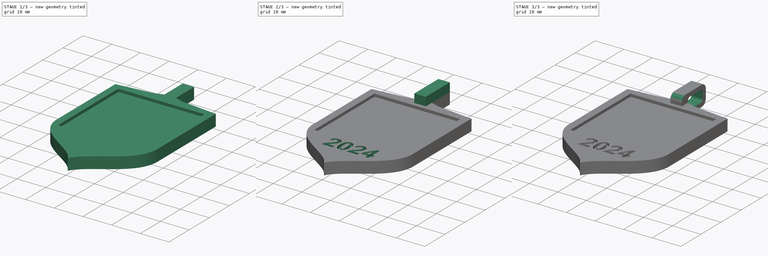
[diagram: build sequence overview — one tinted view per stage of 3, left to right]
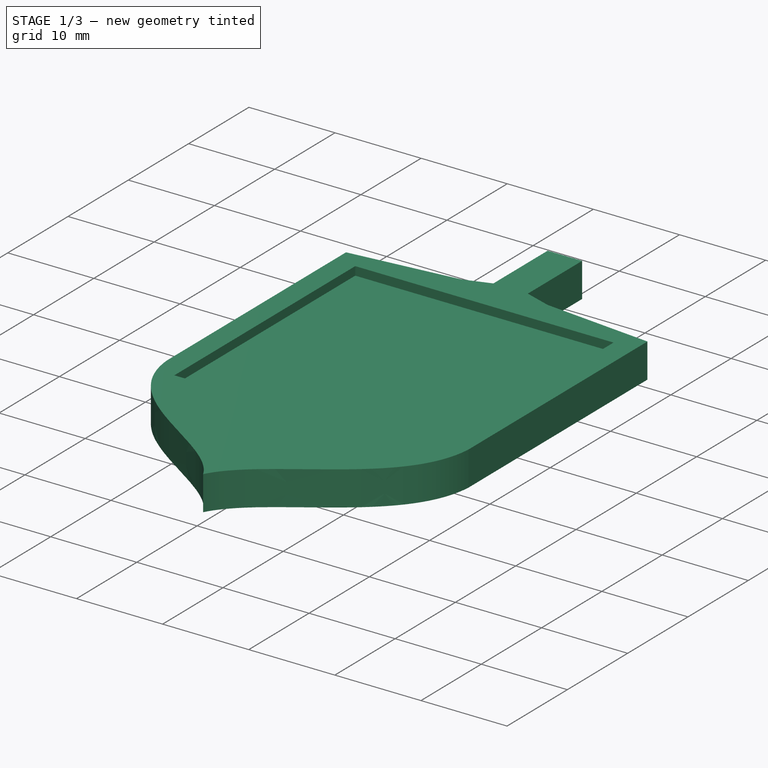
[diagram: stage 1 of 3 — iso view after this stage's code; geometry added in this stage tinted green]
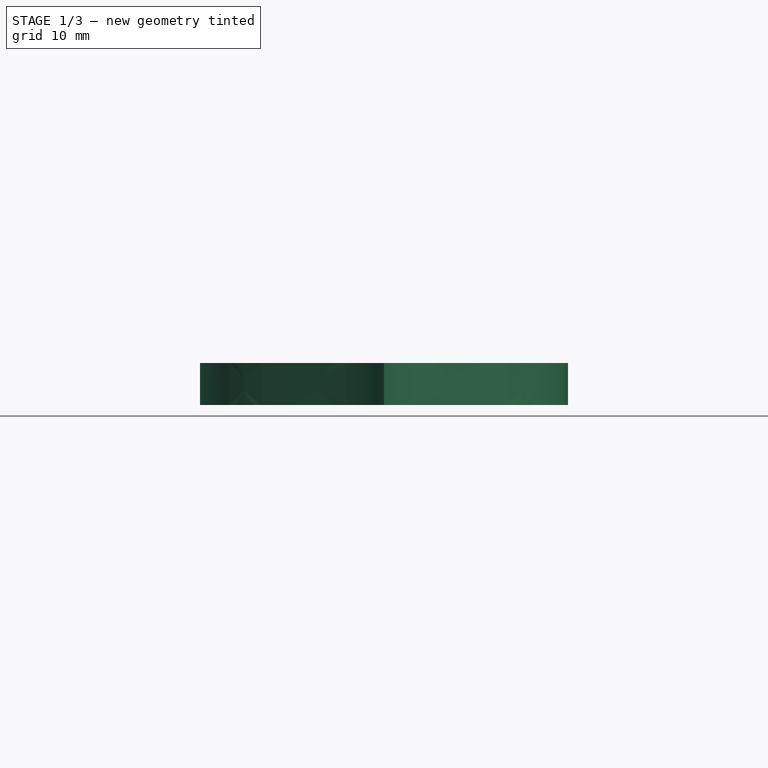
[diagram: stage 1 of 3 — front view after this stage's code; geometry added in this stage tinted green]
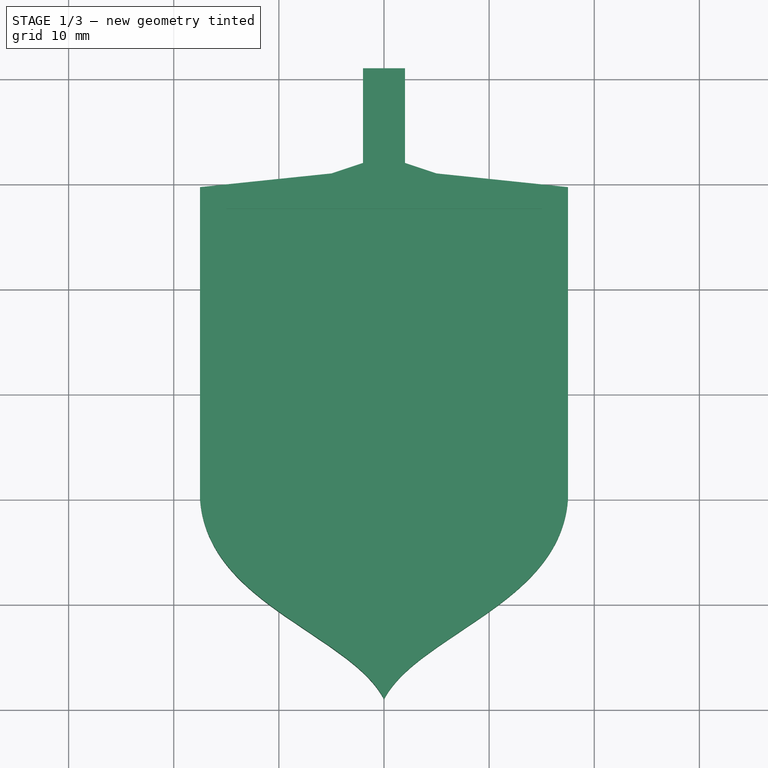
[diagram: stage 1 of 3 — top view after this stage's code; geometry added in this stage tinted green]
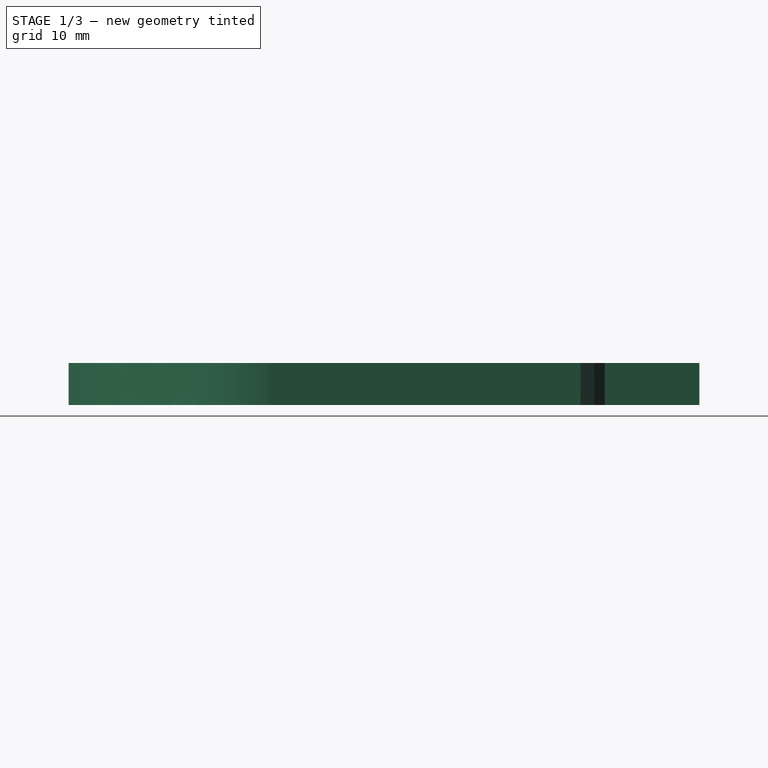
[diagram: stage 1 of 3 — right view after this stage's code; geometry added in this stage tinted green]
FCSTD DOCUMENT  (FreeCAD 0.21R33668 +26 (Git))
Label: щит медаль з вушком з роком
License: All rights reserved
LicenseURL: http://en.wikipedia.org/wiki/All_rights_reserved
objects: Sketcher::SketchObject×5, PartDesign::Pocket×4, PartDesign::Pad×2, Part::Part2DObjectPython×1, PartDesign::Fillet×1, PartDesign::Body×1
note: 21 computed .brp shape members not serialized (recipe doc carries the construction recipe); baked Part::Feature solids carry a one-line shape summary decoded from their .brp

FEATURE [Sketcher::SketchObject] Sketch
  FullyConstrained = false
  MapMode = 5
  Support = -> [XY_Plane]
  sketch-geometry (38):
    g0: GeomPoint X=-17.5 Y=29.6973 Z=0
    g1: GeomPoint X=17.5 Y=29.6973 Z=0
    g2: GeomPoint X=-17.5 Y=0 Z=0
    g3: GeomPoint X=17.5 Y=0 Z=0
    g4: GeomPoint X=-16.7565 Y=-10 Z=0
    g5: GeomPoint X=-3.27287 Y=-12.7609 Z=0
    g6: GeomPoint X=0 Y=-19 Z=0
    g7: GeomPoint X=3.27287 Y=-12.7609 Z=0
    g8: GeomPoint X=16.7565 Y=-10 Z=0
    g9: GeomPoint X=-5 Y=31 Z=0
    g10: GeomPoint X=5 Y=31 Z=0
    g11: LineSegment StartX=-17.5 StartY=29.6973 StartZ=0 EndX=-5 EndY=31 EndZ=0
    g12: LineSegment StartX=5 StartY=31 StartZ=0 EndX=17.5 EndY=29.6973 EndZ=0
    g13: LineSegment StartX=-17.5 StartY=29.6973 StartZ=0 EndX=-17.5 EndY=0 EndZ=0
    g14: LineSegment StartX=17.5 StartY=29.6973 StartZ=0 EndX=17.5 EndY=0 EndZ=0
    g15-g18: Circle x4 (B-spline internal-alignment scaffolding for g19; pole/knot coordinates omitted)
    g19: BSplineCurve PolesCount=4 KnotsCount=2 Degree=3 IsPeriodic=0
    g20: GeomPoint X=-17.5 Y=0 Z=0
    g21: GeomPoint X=0 Y=-19 Z=0
    g22-g25: Circle x4 (B-spline internal-alignment scaffolding for g26; pole/knot coordinates omitted)
    g26: BSplineCurve PolesCount=4 KnotsCount=2 Degree=3 IsPeriodic=0
    g27: GeomPoint X=17.5 Y=0 Z=0
    g28: GeomPoint X=0 Y=-19 Z=0
    g29: GeomPoint X=-2 Y=32 Z=0
    g30: GeomPoint X=2 Y=32 Z=0
    g31: GeomPoint X=-2 Y=41 Z=0
    g32: GeomPoint X=2 Y=41 Z=0
    g33: LineSegment StartX=-5 StartY=31 StartZ=0 EndX=-2 EndY=32 EndZ=0
    g34: LineSegment StartX=-2 StartY=32 StartZ=0 EndX=-2 EndY=41 EndZ=0
    g35: LineSegment StartX=-2 StartY=41 StartZ=0 EndX=2 EndY=41 EndZ=0
    g36: LineSegment StartX=2 StartY=41 StartZ=0 EndX=2 EndY=32 EndZ=0
    g37: LineSegment StartX=2 StartY=32 StartZ=0 EndX=5 EndY=31 EndZ=0
  constraints (49):
    c: PointOnObject(g2,g-1)
    c: PointOnObject(g6,g-2)
    c: Symmetric(g9,g10,g-2)
    c: Symmetric(g0,g1,g-2)
    c: Symmetric(g2,g3,g-2)
    c: Symmetric(g4,g8,g-2)
    c: Symmetric(g5,g7,g-2)
    c: Coincident(g11,g0)
    c: Coincident(g11,g9)
    c: Coincident(g12,g10)
    c: Coincident(g12,g1)
    c: Coincident(g13,g11)
    c: Coincident(g14,g12)
    c: Vertical(g13)
    c: DistanceX(g11,g12) = 35
    c: DistanceY(g6,g12) = 50
    c: Weight(g15) = 1
    c: Equal(g15,g16)
    c: Coincident(g16,g4)
    c: Equal(g15,g17)
    c: Coincident(g17,g5)
    c: Equal(g15,g18)
    c: Coincident(g19,g6)
    c: InternalAlignment(g15-g18 -> g19) x4
    c: InternalAlignment(g20,g19)
    c: InternalAlignment(g21,g19)
    c: Weight(g22) = 1
    c: Equal(g22,g23)
    c: Coincident(g23,g8)
    c: Equal(g22,g24)
    c: Coincident(g24,g7)
    c: Equal(g22,g25)
    c: Coincident(g26,g19)
    c: InternalAlignment(g22-g25 -> g26) x4
    c: InternalAlignment(g27,g26)
    c: InternalAlignment(g28,g26)
    c: Symmetric(g29,g30,g-2)
    c: Symmetric(g31,g32,g-2)
    c: Coincident(g33,g11)
    c: Coincident(g33,g29)
    c: Coincident(g34,g33)
    c: Coincident(g34,g31)
    c: Vertical(g34)
    c: Coincident(g35,g34)
    c: Coincident(g35,g32)
    c: Coincident(g36,g35)
    c: Coincident(g36,g30)
    c: Coincident(g37,g36)
    c: Coincident(g37,g12)
FEATURE [PartDesign::Pad] Pad
  Direction = (0,0,1)
  Length = 4
  Length2 = 10
  Profile = -> Sketch
  ReferenceAxis = -> Sketch [N_Axis]
  Type = 0
FEATURE [Sketcher::SketchObject] Sketch001
  FullyConstrained = false
  MapMode = 5
  Placement = pos=(0,0,4) rot=(0,0,1;0rad)
  sketch-geometry (5):
    g0: LineSegment StartX=-15 StartY=27.6513 StartZ=0 EndX=-15 EndY=-2.3487 EndZ=0
    g1: LineSegment StartX=-15 StartY=-2.3487 StartZ=0 EndX=15 EndY=-2.3487 EndZ=0
    g2: LineSegment StartX=15 StartY=-2.3487 StartZ=0 EndX=15 EndY=27.6513 EndZ=0
    g3: LineSegment StartX=15 StartY=27.6513 StartZ=0 EndX=-15 EndY=27.6513 EndZ=0
    g4: GeomPoint X=-1e-16 Y=12.6513 Z=0
  constraints (12):
    c: Coincident(g0,g1)
    c: Coincident(g1,g2)
    c: Coincident(g2,g3)
    c: Coincident(g3,g0)
    c: Horizontal(g1)
    c: Horizontal(g3)
    c: Vertical(g0)
    c: Vertical(g2)
    c: Symmetric(g1,g0,g4)
    c: PointOnObject(g4,g-2)
    c: DistanceX(g3,g3) = 30
    c: DistanceY(g2,g2) = 30
FEATURE [PartDesign::Pocket] Pocket
  BaseFeature = -> Pad
  Direction = (0,0,-1)
  Length = 1
  Length2 = 5
  Profile = -> Sketch001
  ReferenceAxis = -> Sketch001 [N_Axis]
  Type = 0
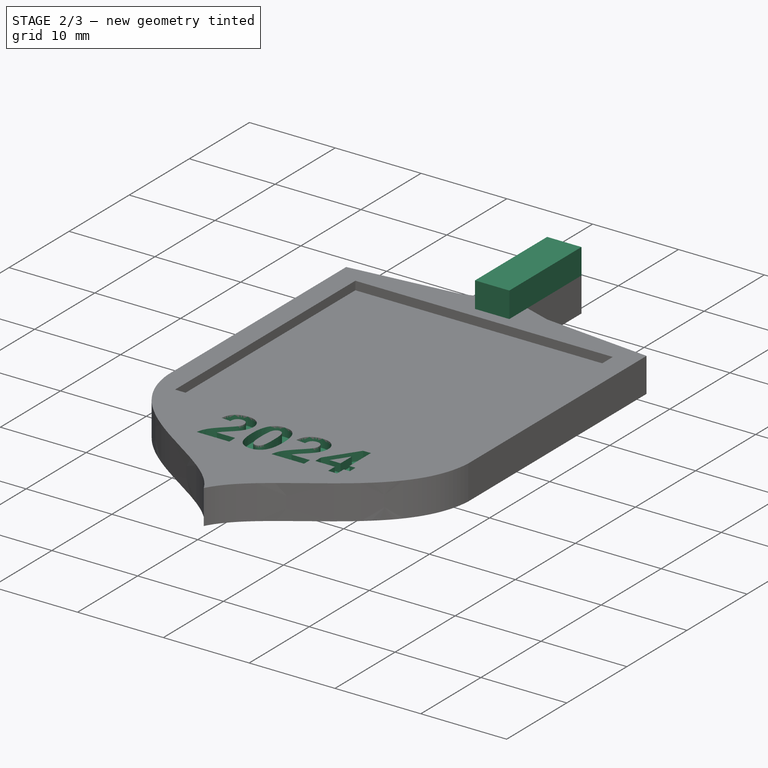
[diagram: stage 2 of 3 — iso view after this stage's code; geometry added in this stage tinted green]
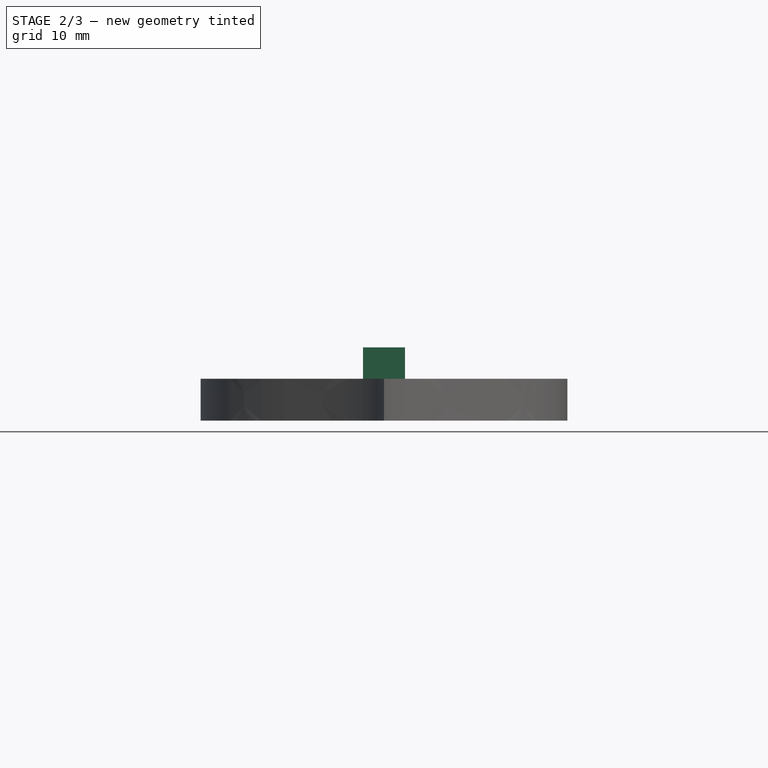
[diagram: stage 2 of 3 — front view after this stage's code; geometry added in this stage tinted green]
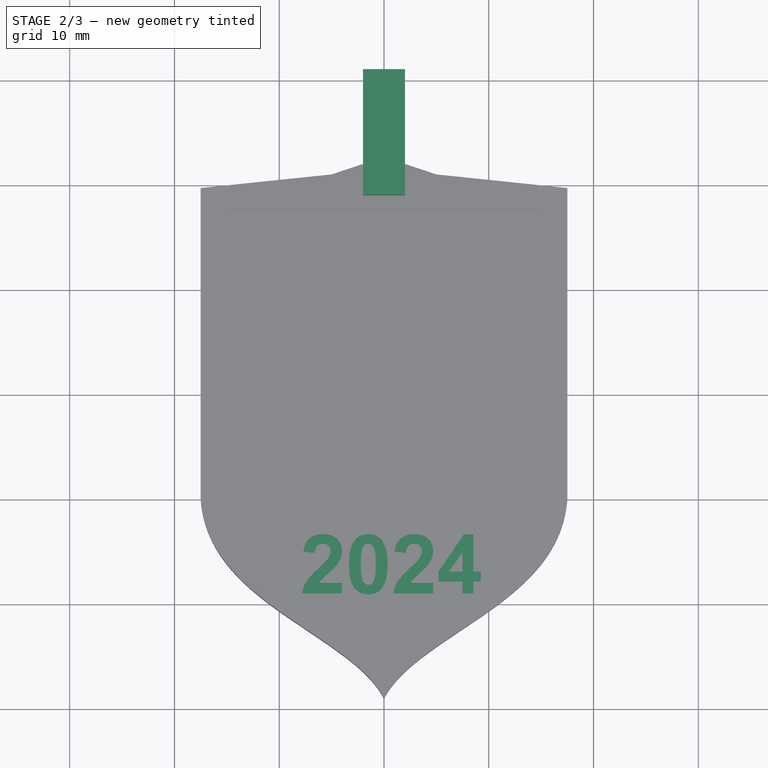
[diagram: stage 2 of 3 — top view after this stage's code; geometry added in this stage tinted green]
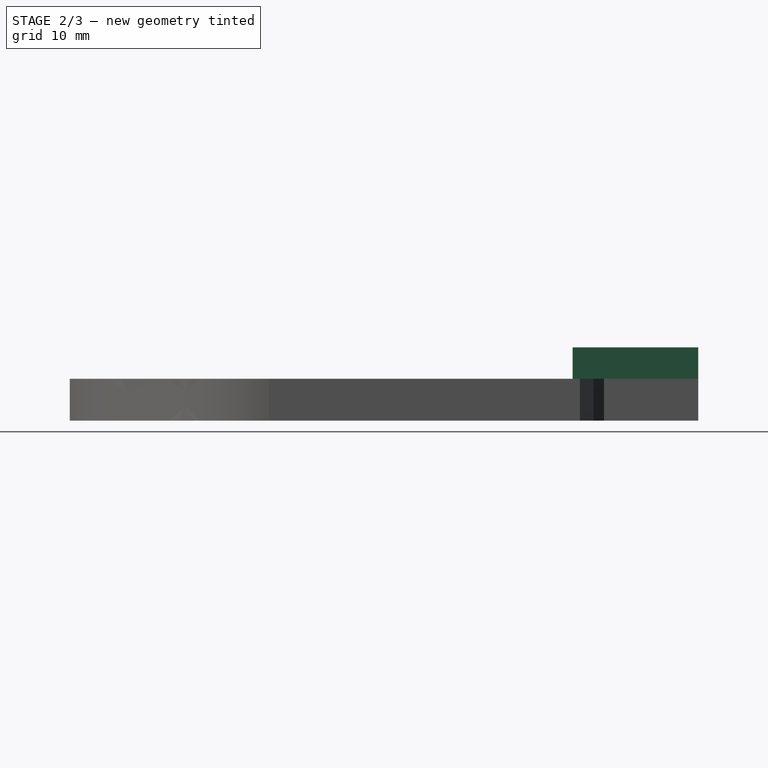
[diagram: stage 2 of 3 — right view after this stage's code; geometry added in this stage tinted green]
FEATURE [Part::Part2DObjectPython] ShapeString  # Draft 2D object (typed FeaturePython)
  FontFile = <path>
  MakeFace = true
  Placement = pos=(-8,-9,4) rot=(0,0,-1.00504;0rad)
  Size = 6
  String = 2024
  Tracking = 0
FEATURE [PartDesign::Pocket] Pocket001
  BaseFeature = -> Pocket
  Direction = (0,0,-1)
  Length = 1
  Length2 = 5
  Profile = -> ShapeString
  ReferenceAxis = -> ShapeString [N_Axis]
  Type = 0
FEATURE [Sketcher::SketchObject] Sketch002
  FullyConstrained = false
  MapMode = 5
  Placement = pos=(0,0,4) rot=(0,0,1;0rad)
  Support = -> [Pocket001]
  sketch-geometry (4):
    g0: LineSegment StartX=-2 StartY=41 StartZ=0 EndX=2 EndY=41 EndZ=0
    g1: LineSegment StartX=2 StartY=41 StartZ=0 EndX=2 EndY=29 EndZ=0
    g2: LineSegment StartX=2 StartY=29 StartZ=0 EndX=-2 EndY=29 EndZ=0
    g3: LineSegment StartX=-2 StartY=29 StartZ=0 EndX=-2 EndY=41 EndZ=0
  constraints (9):
    c: Coincident(g0,g1)
    c: Coincident(g1,g2)
    c: Coincident(g2,g3)
    c: Coincident(g3,g0)
    c: Horizontal(g0)
    c: Horizontal(g2)
    c: Vertical(g1)
    c: Vertical(g3)
    c: DistanceY(g1,g1) = 12
FEATURE [PartDesign::Pad] Pad001
  BaseFeature = -> Pocket001
  Direction = (0,0,1)
  Length = 3
  Length2 = 10
  Profile = -> Sketch002
  ReferenceAxis = -> Sketch002 [N_Axis]
  Type = 0
FEATURE [Sketcher::SketchObject] Sketch003
  FullyConstrained = false
  MapMode = 5
  Placement = pos=(0,0,7) rot=(0,0,1;0rad)
  sketch-geometry (10):
    g0: ArcOfCircle CenterX=33.0357 CenterY=4.36712 CenterZ=0 NormalX=0 NormalY=0 NormalZ=1 AngleXU=0 Radius=0.887426 StartAngle=1.5708 EndAngle=3.14159
    g1: LineSegment StartX=33.0357 StartY=5.25455 StartZ=0 EndX=40.1574 EndY=5.25455 EndZ=0
    g2: ArcOfCircle CenterX=40.1574 CenterY=4.36712 CenterZ=0 NormalX=0 NormalY=0 NormalZ=1 AngleXU=0 Radius=0.887426 StartAngle=2e-16 EndAngle=1.5708
    g3: LineSegment StartX=41.0448 StartY=4.36712 StartZ=0 EndX=41.0448 EndY=2.48502 EndZ=0
    g4: ArcOfCircle CenterX=40.1574 CenterY=2.48502 CenterZ=0 NormalX=0 NormalY=0 NormalZ=1 AngleXU=0 Radius=0.887426 StartAngle=4.71239 EndAngle=6.28319
    g5: LineSegment StartX=40.1574 StartY=1.59759 StartZ=0 EndX=33.0357 EndY=1.59759 EndZ=0
    g6: ArcOfCircle CenterX=33.0357 CenterY=2.48502 CenterZ=0 NormalX=0 NormalY=0 NormalZ=1 AngleXU=0 Radius=0.887426 StartAngle=3.14159 EndAngle=4.71239
    g7: LineSegment StartX=32.1483 StartY=2.48502 StartZ=0 EndX=32.1483 EndY=4.36712 EndZ=0
    g8: GeomPoint X=32.1483 Y=5.25455 Z=0
    g9: GeomPoint X=41.0448 Y=1.59759 Z=0
  constraints (19):
    c: Tangent(g0,g1) = 1.5708
    c: Tangent(g1,g2) = 1.5708
    c: Tangent(g2,g3) = 1.5708
    c: Tangent(g3,g4) = 1.5708
    c: Tangent(g4,g5) = 1.5708
    c: Tangent(g5,g6) = 1.5708
    c: Tangent(g6,g7) = 1.5708
    c: Tangent(g7,g0) = 1.5708
    c: Horizontal(g1)
    c: Horizontal(g5)
    c: Vertical(g3)
    c: Vertical(g7)
    c: Equal(g0,g2)
    c: Equal(g2,g4)
    c: Equal(g4,g6)
    c: PointOnObject(g8,g1)
    c: PointOnObject(g8,g7)
    c: PointOnObject(g9,g3)
    c: PointOnObject(g9,g5)
FEATURE [PartDesign::Pocket] Pocket002
  BaseFeature = -> Pad001
  Direction = (0,0,-1)
  Length = 5
  Length2 = 5
  Profile = -> Sketch003
  ReferenceAxis = -> Sketch003 [N_Axis]
  Type = 0
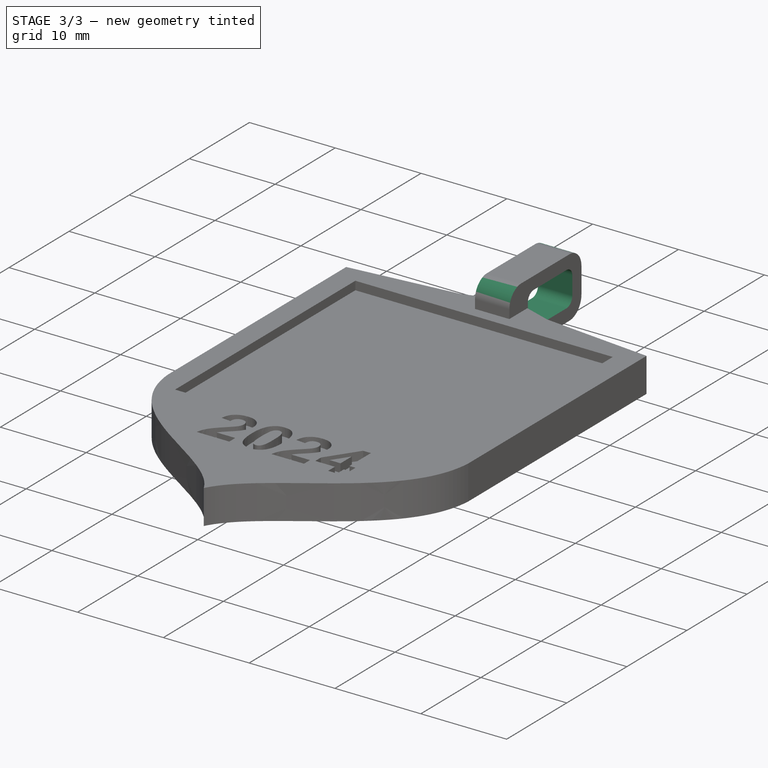
[diagram: stage 3 of 3 — iso view after this stage's code; geometry added in this stage tinted green]
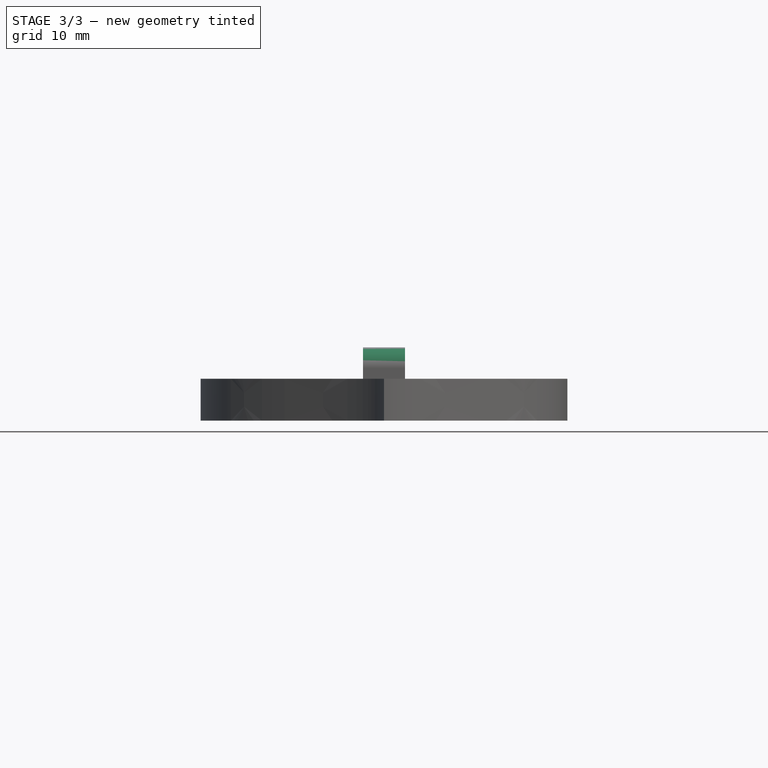
[diagram: stage 3 of 3 — front view after this stage's code; geometry added in this stage tinted green]
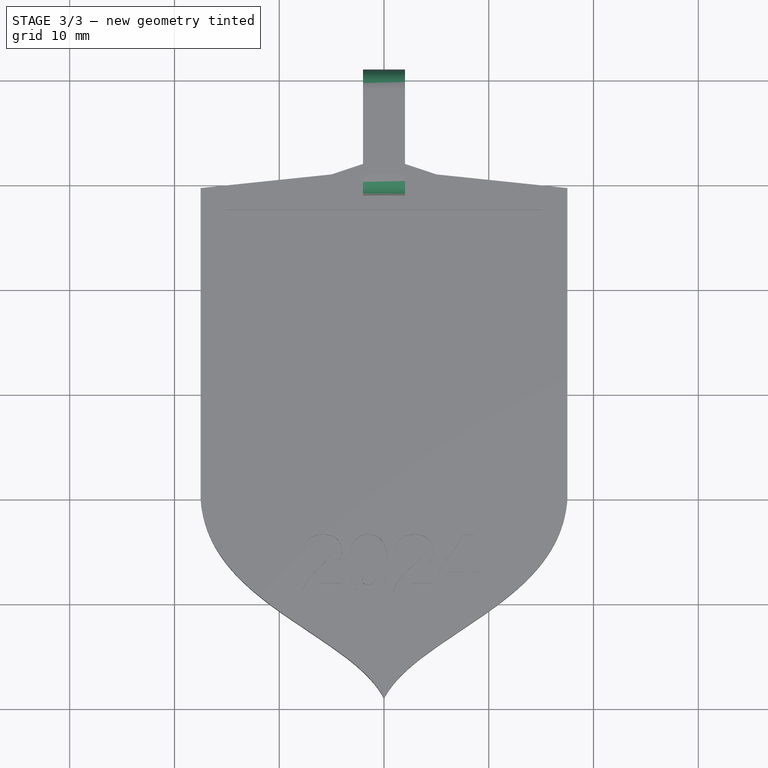
[diagram: stage 3 of 3 — top view after this stage's code; geometry added in this stage tinted green]
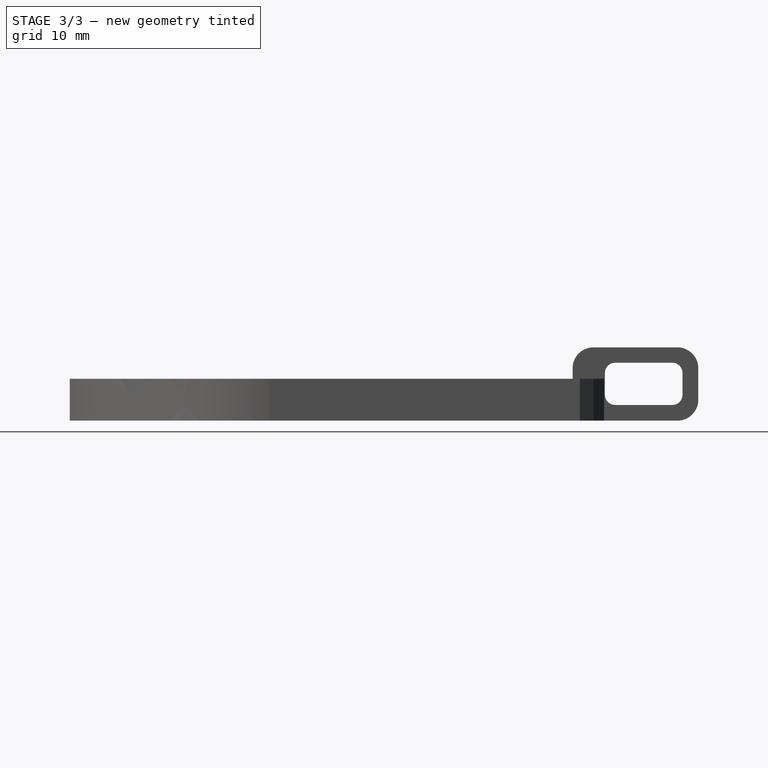
[diagram: stage 3 of 3 — right view after this stage's code; geometry added in this stage tinted green]
FEATURE [Sketcher::SketchObject] Sketch004
  FullyConstrained = false
  MapMode = 5
  Placement = pos=(2,0,0) rot=(0.57735,0.57735,0.57735;2.0944rad)
  Support = -> [Pocket002]
  sketch-geometry (10):
    g0: ArcOfCircle CenterX=33.0622 CenterY=4.55401 CenterZ=0 NormalX=0 NormalY=0 NormalZ=1 AngleXU=0 Radius=0.975816 StartAngle=1.5708 EndAngle=3.14159
    g1: LineSegment StartX=33.0622 StartY=5.52982 StartZ=0 EndX=38.5154 EndY=5.52982 EndZ=0
    g2: ArcOfCircle CenterX=38.5154 CenterY=4.55401 CenterZ=0 NormalX=0 NormalY=0 NormalZ=1 AngleXU=0 Radius=0.975816 StartAngle=2e-16 EndAngle=1.5708
    g3: LineSegment StartX=39.4912 StartY=4.55401 StartZ=0 EndX=39.4912 EndY=2.47584 EndZ=0
    g4: ArcOfCircle CenterX=38.5154 CenterY=2.47584 CenterZ=0 NormalX=0 NormalY=0 NormalZ=1 AngleXU=0 Radius=0.975816 StartAngle=4.71239 EndAngle=6.28319
    g5: LineSegment StartX=38.5154 StartY=1.50002 StartZ=0 EndX=33.0622 EndY=1.50002 EndZ=0
    g6: ArcOfCircle CenterX=33.0622 CenterY=2.47584 CenterZ=0 NormalX=0 NormalY=0 NormalZ=1 AngleXU=0 Radius=0.975816 StartAngle=3.14159 EndAngle=4.71239
    g7: LineSegment StartX=32.0864 StartY=2.47584 StartZ=0 EndX=32.0864 EndY=4.55401 EndZ=0
    g8: GeomPoint X=32.0864 Y=5.52982 Z=0
    g9: GeomPoint X=39.4912 Y=1.50002 Z=0
  constraints (19):
    c: Tangent(g0,g1) = 1.5708
    c: Tangent(g1,g2) = 1.5708
    c: Tangent(g2,g3) = 1.5708
    c: Tangent(g3,g4) = 1.5708
    c: Tangent(g4,g5) = 1.5708
    c: Tangent(g5,g6) = 1.5708
    c: Tangent(g6,g7) = 1.5708
    c: Tangent(g7,g0) = 1.5708
    c: Horizontal(g1)
    c: Horizontal(g5)
    c: Vertical(g3)
    c: Vertical(g7)
    c: Equal(g0,g2)
    c: Equal(g2,g4)
    c: Equal(g4,g6)
    c: PointOnObject(g8,g1)
    c: PointOnObject(g8,g7)
    c: PointOnObject(g9,g3)
    c: PointOnObject(g9,g5)
FEATURE [PartDesign::Pocket] Pocket003
  BaseFeature = -> Pocket002
  Direction = (-1,0,0)
  Length = 5
  Length2 = 5
  Profile = -> Sketch004
  ReferenceAxis = -> Sketch004 [N_Axis]
  Type = 0
FEATURE [PartDesign::Fillet] Fillet
  Base = -> Pocket003 [Edge267,Edge13,Edge123]
  BaseFeature = -> Pocket003
  Radius = 2
  SupportTransform = false
  UseAllEdges = false
FEATURE [PartDesign::Body] Body  label="щит медаль"
  Group = -> [Sketch,Pad,Sketch001,Pocket,ShapeString,Pocket001,Sketch002,Pad001,Sketch003,Pocket002,Sketch004,Pocket003,Fillet]
  Origin = -> Origin
  Tip = -> Fillet
note: 1 file-system path scrubbed to <path> (originals preserved in the JSON sidecar)
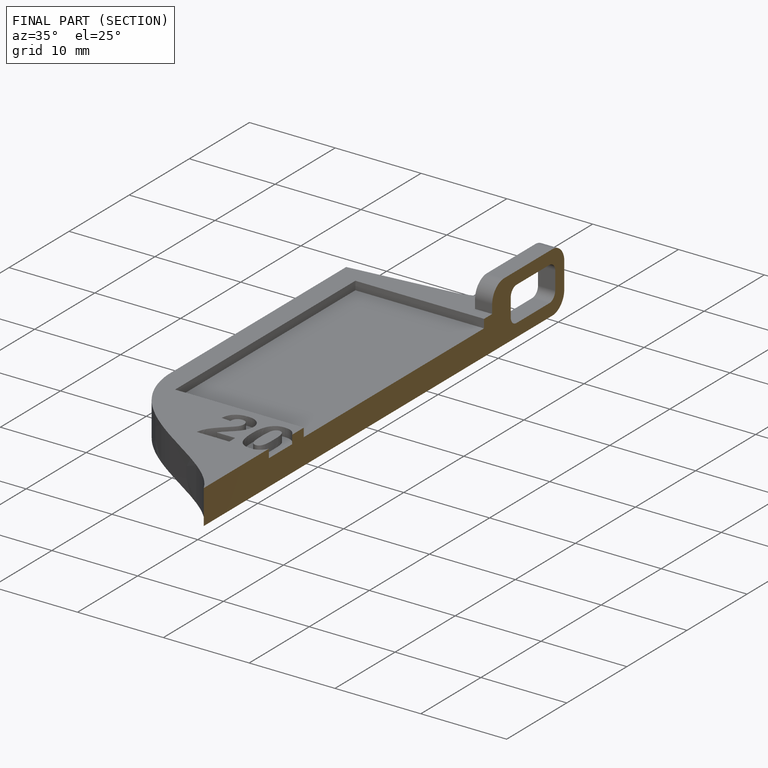
[diagram: finished part — half-section view (interior)]
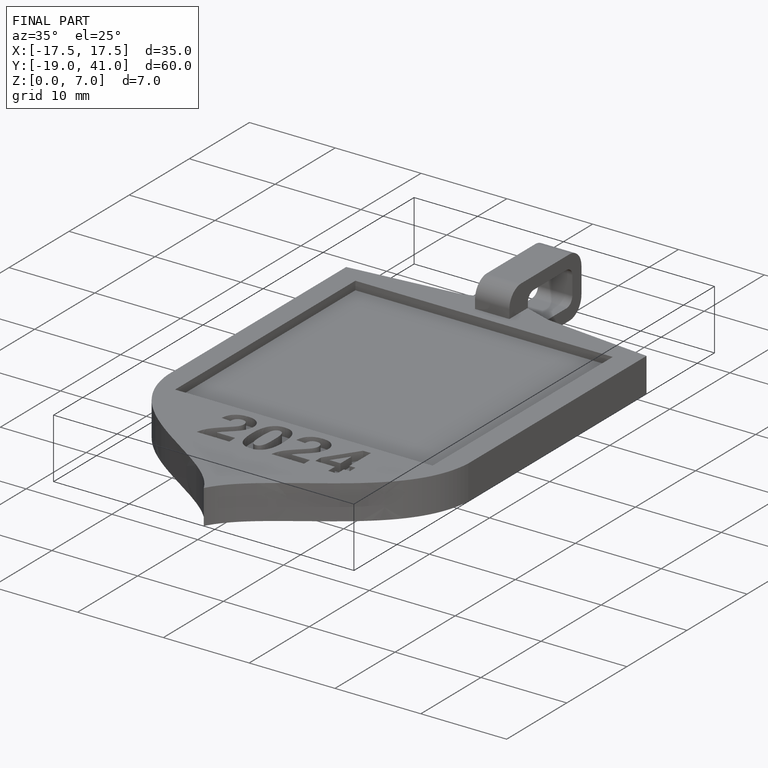
[diagram: finished part — iso view with bounding-box wireframe]
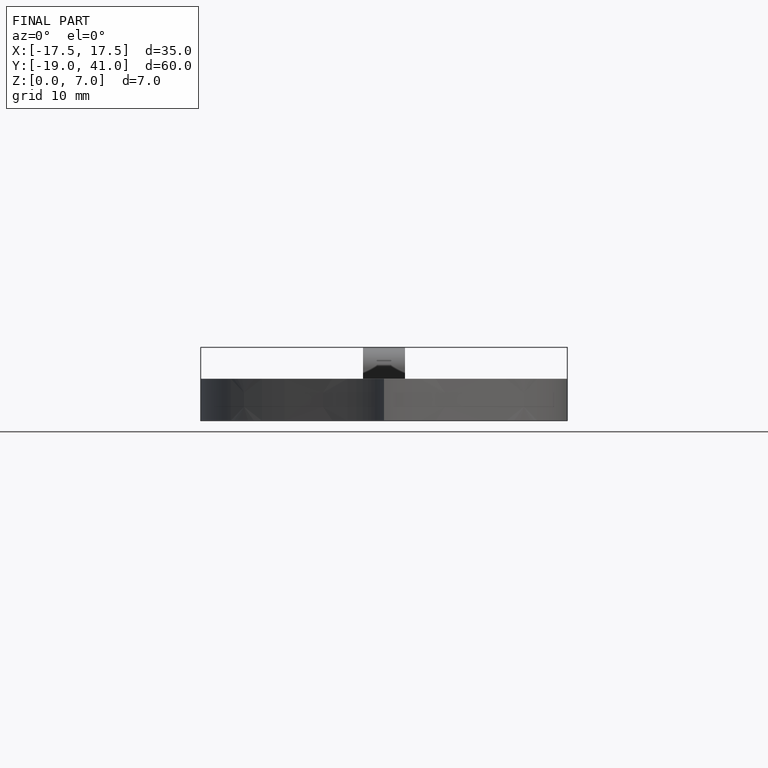
[diagram: finished part — front view with bounding-box wireframe]
